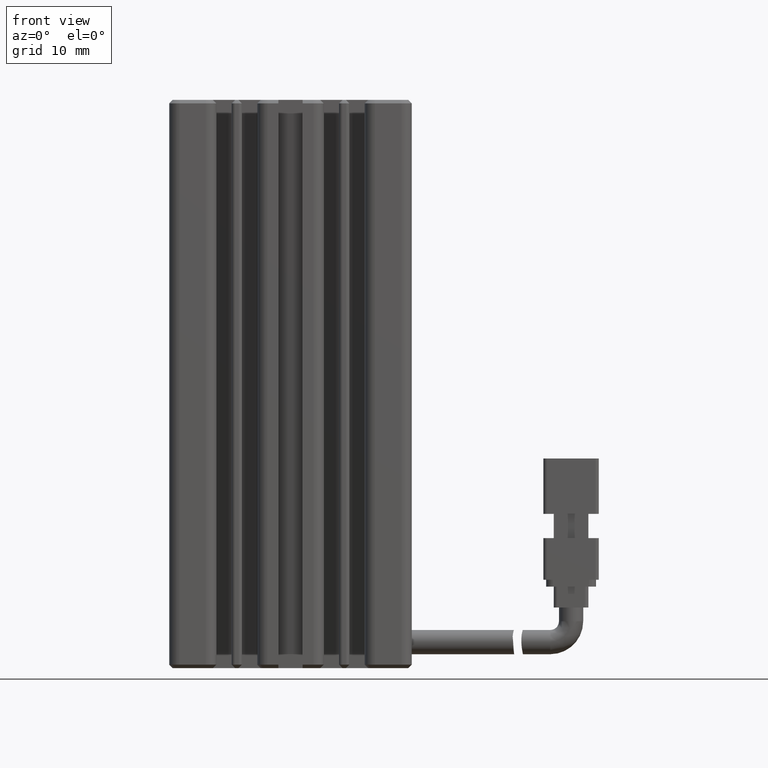
[diagram: clean part render]
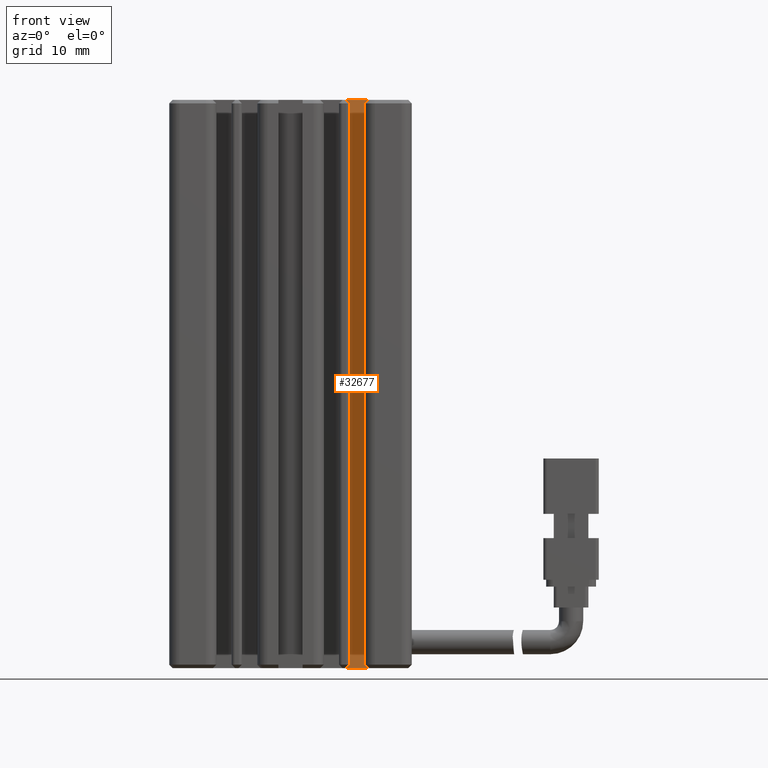
[diagram: same view with one face highlighted and labeled with its STEP entity id]
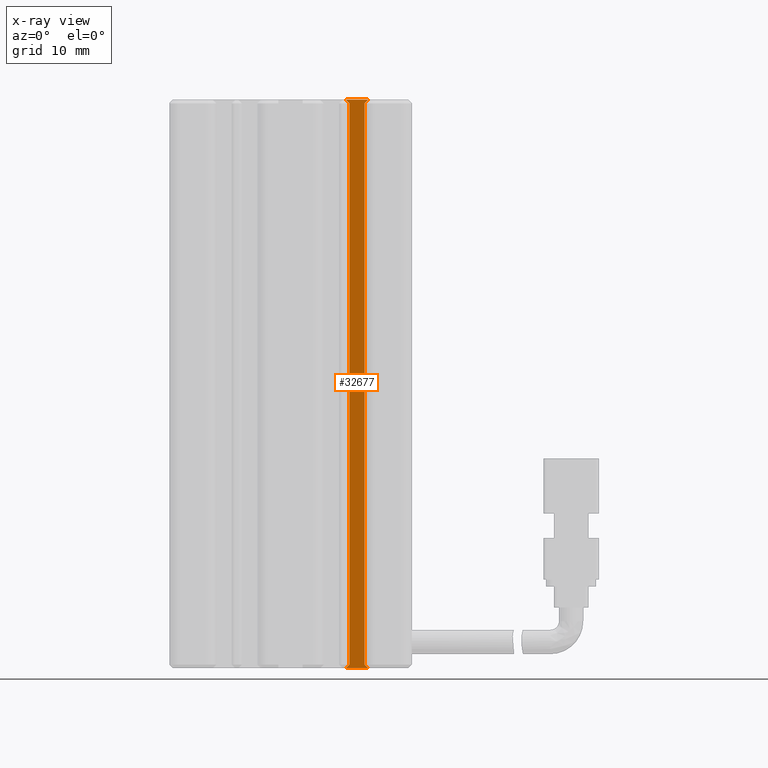
[diagram: x-ray of the same camera — body ghosted, the highlighted face saturated]
A machine part, front view. The second image highlights one B-rep face of the part: STEP entity #32677.
The next image is the same camera in x-ray: the body ghosted, the highlighted face saturated — about 0% of this face is hidden behind the body in this view.
In plain terms, the highlighted planar face has unit normal (0, -1, 0).
Its self-contained STEP definition (entity closure, byte-faithful):
#176 = CARTESIAN_POINT ( 'NONE',  ( 52.12537974683542100, 16.49073232304836600, -156.0000000000000000 ) ) ;
#869 = DIRECTION ( 'NONE',  ( 0.7071067811865574500, 0.0000000000000000000, -0.7071067811865376900 ) ) ;
#1158 = CARTESIAN_POINT ( 'NONE',  ( 40.92537974683542500, 16.49073232304836600, -156.0000000000000000 ) ) ;
#2746 = DIRECTION ( 'NONE',  ( 1.000000000000000000, 0.0000000000000000000, 0.0000000000000000000 ) ) ;
#3145 = CARTESIAN_POINT ( 'NONE',  ( 51.62537974683542100, 16.49073232304836600, -155.5000000000000000 ) ) ;
#3191 = VECTOR ( 'NONE', #21661, 1000.000000000000000 ) ;
#3574 = ORIENTED_EDGE ( 'NONE', *, *, #36715, .T. ) ;
#3757 = FACE_OUTER_BOUND ( 'NONE', #32989, .T. ) ;
#4321 = CARTESIAN_POINT ( 'NONE',  ( 49.42537974683541100, 16.49073232304836600, -155.5000000000000300 ) ) ;
#4450 = LINE ( 'NONE', #26372, #18146 ) ;
#4527 = DIRECTION ( 'NONE',  ( 0.0000000000000000000, -1.000000000000000000, 0.0000000000000000000 ) ) ;
#4915 = VERTEX_POINT ( 'NONE', #35494 ) ;
#5861 = EDGE_CURVE ( 'NONE', #35317, #31991, #6589, .T. ) ;
#6589 = LINE ( 'NONE', #20982, #24785 ) ;
#6667 = CARTESIAN_POINT ( 'NONE',  ( 49.42537974683541800, 16.49073232304836600, -74.00000000000001400 ) ) ;
#7969 = ORIENTED_EDGE ( 'NONE', *, *, #30187, .T. ) ;
#8762 = VECTOR ( 'NONE', #33076, 1000.000000000000000 ) ;
#9687 = LINE ( 'NONE', #18285, #8762 ) ;
#10543 = PLANE ( 'NONE',  #36874 ) ;
#10814 = VECTOR ( 'NONE', #16265, 1000.000000000000000 ) ;
#10824 = ORIENTED_EDGE ( 'NONE', *, *, #24143, .T. ) ;
#12689 = EDGE_CURVE ( 'NONE', #36051, #33411, #31094, .T. ) ;
#12996 = LINE ( 'NONE', #176, #13455 ) ;
#13455 = VECTOR ( 'NONE', #32462, 1000.000000000000100 ) ;
#13953 = VERTEX_POINT ( 'NONE', #14888 ) ;
#14888 = CARTESIAN_POINT ( 'NONE',  ( 52.12537974683542100, 16.49073232304836600, -156.0000000000000000 ) ) ;
#15258 = CARTESIAN_POINT ( 'NONE',  ( 51.62537974683541400, 16.49073232304836600, -74.50000000000001400 ) ) ;
#15933 = ORIENTED_EDGE ( 'NONE', *, *, #33862, .F. ) ;
#16009 = CARTESIAN_POINT ( 'NONE',  ( 40.92537974683542500, 16.49073232304836600, -74.00000000000001400 ) ) ;
#16265 = DIRECTION ( 'NONE',  ( 0.0000000000000000000, -0.0000000000000000000, -1.000000000000000000 ) ) ;
#17301 = CARTESIAN_POINT ( 'NONE',  ( 40.92537974683542500, 16.49073232304836600, -74.00000000000001400 ) ) ;
#17912 = VERTEX_POINT ( 'NONE', #3145 ) ;
#18146 = VECTOR ( 'NONE', #32435, 1000.000000000000100 ) ;
#18203 = DIRECTION ( 'NONE',  ( 0.7071067811865574500, -0.0000000000000000000, 0.7071067811865376900 ) ) ;
#18285 = CARTESIAN_POINT ( 'NONE',  ( 51.62537974683541400, 16.49073232304836600, -74.00000000000001400 ) ) ;
#18649 = VECTOR ( 'NONE', #2746, 1000.000000000000000 ) ;
#18957 = DIRECTION ( 'NONE',  ( 0.0000000000000000000, -0.0000000000000000000, -1.000000000000000000 ) ) ;
#20490 = EDGE_CURVE ( 'NONE', #13953, #17912, #12996, .T. ) ;
#20982 = CARTESIAN_POINT ( 'NONE',  ( 48.92537974683540400, 16.49073232304836600, -74.00000000000001400 ) ) ;
#21170 = ORIENTED_EDGE ( 'NONE', *, *, #5861, .T. ) ;
#21420 = LINE ( 'NONE', #17301, #18649 ) ;
#21661 = DIRECTION ( 'NONE',  ( 1.000000000000000000, 0.0000000000000000000, 0.0000000000000000000 ) ) ;
#21761 = LINE ( 'NONE', #6667, #10814 ) ;
#22867 = CARTESIAN_POINT ( 'NONE',  ( 51.62537974683542100, 16.49073232304836600, -74.50000000000001400 ) ) ;
#23273 = VECTOR ( 'NONE', #18203, 999.9999999999998900 ) ;
#24143 = EDGE_CURVE ( 'NONE', #4915, #13953, #32092, .T. ) ;
#24163 = CARTESIAN_POINT ( 'NONE',  ( 52.12537974683543500, 16.49073232304836600, -74.00000000000001400 ) ) ;
#24785 = VECTOR ( 'NONE', #869, 999.9999999999998900 ) ;
#24953 = ORIENTED_EDGE ( 'NONE', *, *, #28150, .T. ) ;
#26080 = ORIENTED_EDGE ( 'NONE', *, *, #12689, .T. ) ;
#26372 = CARTESIAN_POINT ( 'NONE',  ( 49.42537974683541800, 16.49073232304836600, -155.5000000000000000 ) ) ;
#27817 = CARTESIAN_POINT ( 'NONE',  ( 49.42537974683541800, 16.49073232304836600, -74.50000000000001400 ) ) ;
#28150 = EDGE_CURVE ( 'NONE', #17912, #36051, #9687, .T. ) ;
#29640 = VERTEX_POINT ( 'NONE', #4321 ) ;
#29835 = CARTESIAN_POINT ( 'NONE',  ( 48.92537974683541100, 16.49073232304836600, -74.00000000000001400 ) ) ;
#30187 = EDGE_CURVE ( 'NONE', #31991, #29640, #21761, .T. ) ;
#31094 = LINE ( 'NONE', #15258, #23273 ) ;
#31991 = VERTEX_POINT ( 'NONE', #27817 ) ;
#32092 = LINE ( 'NONE', #1158, #3191 ) ;
#32435 = DIRECTION ( 'NONE',  ( -0.7071067811865474600, 0.0000000000000000000, -0.7071067811865474600 ) ) ;
#32462 = DIRECTION ( 'NONE',  ( -0.7071067811865500200, 0.0000000000000000000, 0.7071067811865451300 ) ) ;
#32677 = ADVANCED_FACE ( 'NONE', ( #3757 ), #10543, .T. ) ;
#32989 = EDGE_LOOP ( 'NONE', ( #7969, #3574, #10824, #37925, #24953, #26080, #15933, #21170 ) ) ;
#33076 = DIRECTION ( 'NONE',  ( -0.0000000000000000000, 0.0000000000000000000, 1.000000000000000000 ) ) ;
#33411 = VERTEX_POINT ( 'NONE', #24163 ) ;
#33862 = EDGE_CURVE ( 'NONE', #35317, #33411, #21420, .T. ) ;
#35317 = VERTEX_POINT ( 'NONE', #29835 ) ;
#35494 = CARTESIAN_POINT ( 'NONE',  ( 48.92537974683541800, 16.49073232304836600, -156.0000000000000000 ) ) ;
#36051 = VERTEX_POINT ( 'NONE', #22867 ) ;
#36715 = EDGE_CURVE ( 'NONE', #29640, #4915, #4450, .T. ) ;
#36874 = AXIS2_PLACEMENT_3D ( 'NONE', #16009, #4527, #18957 ) ;
#37925 = ORIENTED_EDGE ( 'NONE', *, *, #20490, .T. ) ;